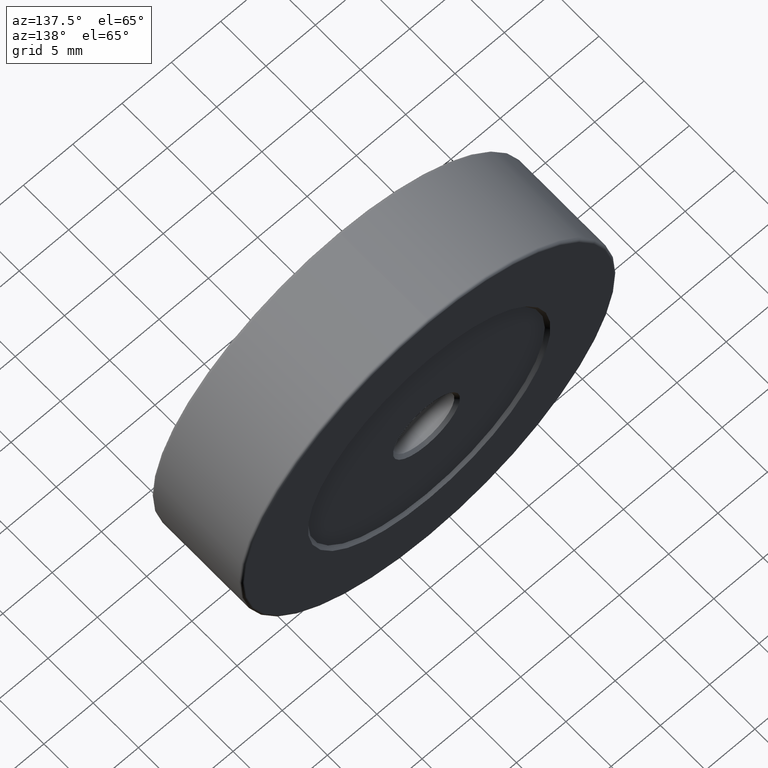
[diagram: clean part render]
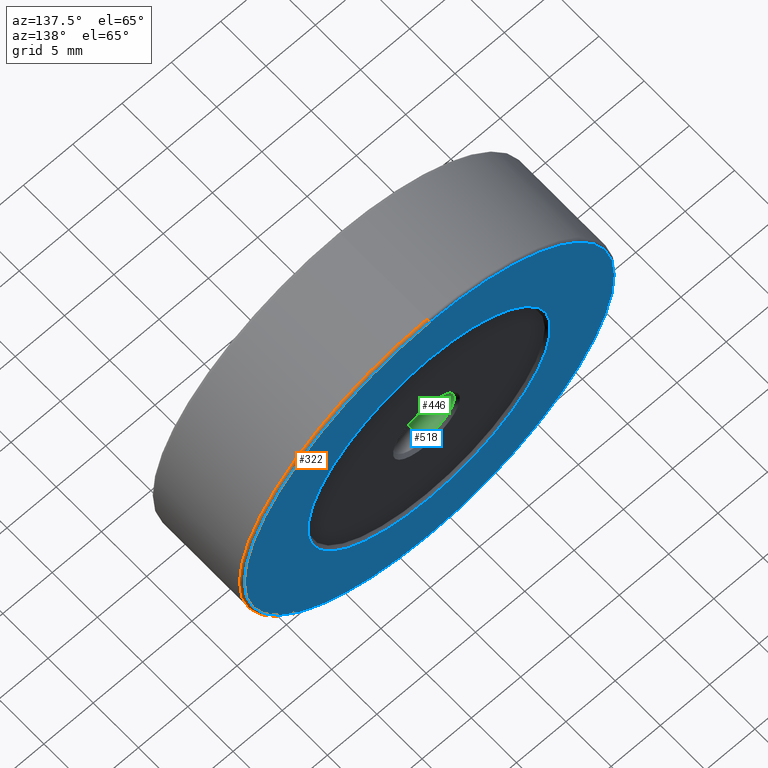
[diagram: same view with three faces highlighted in distinct colors, each labeled with its STEP entity id]
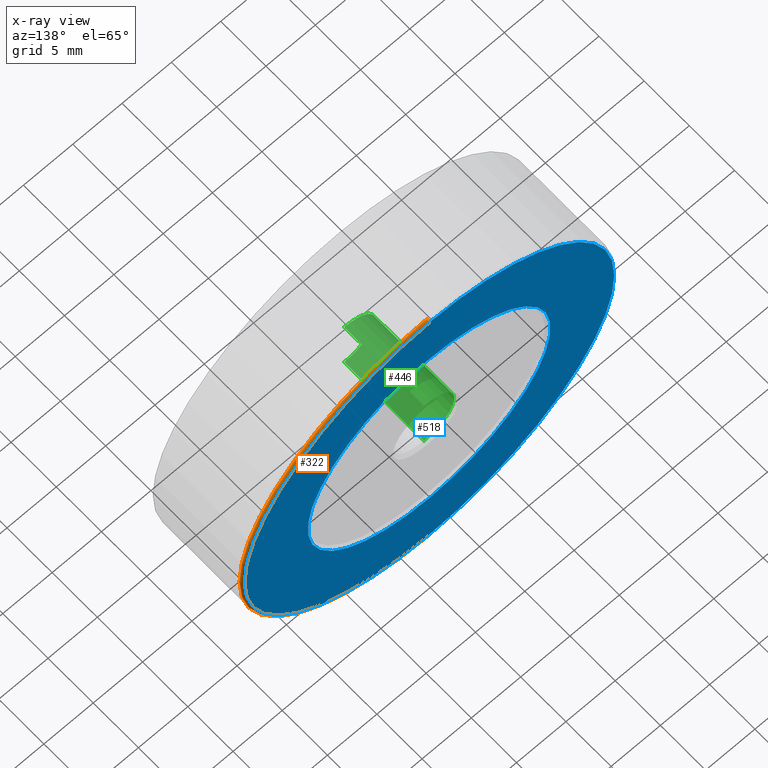
[diagram: x-ray of the same camera — body ghosted, the three highlighted faces saturated]
A machine part, auxiliary view with three faces highlighted in distinct colors.
The next image is the same camera in x-ray (body ghosted, the three faces saturated) — at least one of them is partly hidden behind the body in this view.
Their STEP definitions:

[orange] entity #322 — the highlighted toroidal blend (fillet) surface has major radius 18.75 mm and minor (blend) radius 0.25 mm.
#9 = CARTESIAN_POINT ( 'NONE',  ( -7.546808913101048510, 1.856404872697271946, 56.99999999999999289 ) ) ;
#19 = EDGE_CURVE ( 'NONE', #523, #270, #98, .T. ) ;
#20 = DIRECTION ( 'NONE',  ( 0.000000000000000000, 0.000000000000000000, 1.000000000000000000 ) ) ;
#22 = EDGE_LOOP ( 'NONE', ( #563, #282, #573, #490 ) ) ;
#29 = EDGE_CURVE ( 'NONE', #188, #97, #535, .T. ) ;
#32 = CARTESIAN_POINT ( 'NONE',  ( -7.546808913101048510, 2.106404872697272168, 38.00000000000000000 ) ) ;
#81 = CARTESIAN_POINT ( 'NONE',  ( -7.546808913101045846, 2.106404872697272168, 19.25000000000000000 ) ) ;
#88 = AXIS2_PLACEMENT_3D ( 'NONE', #542, #404, #20 ) ;
#97 = VERTEX_POINT ( 'NONE', #167 ) ;
#98 = CIRCLE ( 'NONE', #495, 0.2500000000000002220 ) ;
#120 = DIRECTION ( 'NONE',  ( 0.000000000000000000, 0.000000000000000000, 1.000000000000000000 ) ) ;
#135 = CIRCLE ( 'NONE', #313, 18.99999999999999645 ) ;
#150 = CIRCLE ( 'NONE', #234, 18.74999999999999645 ) ;
#167 = CARTESIAN_POINT ( 'NONE',  ( -7.546808913101048510, 2.106404872697272168, 56.74999999999999289 ) ) ;
#177 = DIRECTION ( 'NONE',  ( 1.000000000000000000, -0.000000000000000000, 1.224646799147353207E-16 ) ) ;
#188 = VERTEX_POINT ( 'NONE', #9 ) ;
#234 = AXIS2_PLACEMENT_3D ( 'NONE', #32, #375, #281 ) ;
#242 = TOROIDAL_SURFACE ( 'NONE', #88, 18.75000000000000000, 0.2500000000000000000 ) ;
#270 = VERTEX_POINT ( 'NONE', #81 ) ;
#281 = DIRECTION ( 'NONE',  ( 0.000000000000000000, 0.000000000000000000, 1.000000000000000000 ) ) ;
#282 = ORIENTED_EDGE ( 'NONE', *, *, #19, .T. ) ;
#313 = AXIS2_PLACEMENT_3D ( 'NONE', #410, #586, #120 ) ;
#322 = ADVANCED_FACE ( 'NONE', ( #416 ), #242, .T. ) ;
#333 = CARTESIAN_POINT ( 'NONE',  ( -7.546808913101048510, 1.856404872697271946, 56.74999999999999289 ) ) ;
#371 = DIRECTION ( 'NONE',  ( -1.000000000000000000, 0.000000000000000000, 0.000000000000000000 ) ) ;
#375 = DIRECTION ( 'NONE',  ( 0.000000000000000000, 1.000000000000000000, 0.000000000000000000 ) ) ;
#379 = AXIS2_PLACEMENT_3D ( 'NONE', #333, #371, #503 ) ;
#404 = DIRECTION ( 'NONE',  ( 0.000000000000000000, 1.000000000000000000, 0.000000000000000000 ) ) ;
#410 = CARTESIAN_POINT ( 'NONE',  ( -7.546808913101048510, 1.856404872697271946, 38.00000000000000000 ) ) ;
#416 = FACE_OUTER_BOUND ( 'NONE', #22, .T. ) ;
#427 = EDGE_CURVE ( 'NONE', #523, #188, #135, .T. ) ;
#490 = ORIENTED_EDGE ( 'NONE', *, *, #29, .F. ) ;
#495 = AXIS2_PLACEMENT_3D ( 'NONE', #595, #177, #604 ) ;
#501 = CARTESIAN_POINT ( 'NONE',  ( -7.546808913101044958, 1.856404872697271946, 19.00000000000000000 ) ) ;
#503 = DIRECTION ( 'NONE',  ( 0.000000000000000000, 0.000000000000000000, 1.000000000000000000 ) ) ;
#523 = VERTEX_POINT ( 'NONE', #501 ) ;
#535 = CIRCLE ( 'NONE', #379, 0.2500000000000002220 ) ;
#542 = CARTESIAN_POINT ( 'NONE',  ( -7.546808913101048510, 1.856404872697271946, 38.00000000000000000 ) ) ;
#562 = EDGE_CURVE ( 'NONE', #97, #270, #150, .T. ) ;
#563 = ORIENTED_EDGE ( 'NONE', *, *, #427, .F. ) ;
#573 = ORIENTED_EDGE ( 'NONE', *, *, #562, .F. ) ;
#586 = DIRECTION ( 'NONE',  ( -0.000000000000000000, -1.000000000000000000, -0.000000000000000000 ) ) ;
#595 = CARTESIAN_POINT ( 'NONE',  ( -7.546808913101045846, 1.856404872697271946, 19.25000000000000000 ) ) ;
#604 = DIRECTION ( 'NONE',  ( 0.000000000000000000, 0.000000000000000000, -1.000000000000000000 ) ) ;

[blue] entity #518 — the highlighted planar face has unit normal (0, 1, 0).
#7 = AXIS2_PLACEMENT_3D ( 'NONE', #418, #608, #546 ) ;
#32 = CARTESIAN_POINT ( 'NONE',  ( -7.546808913101048510, 2.106404872697272168, 38.00000000000000000 ) ) ;
#36 = CARTESIAN_POINT ( 'NONE',  ( -7.546808913101048510, 2.106404872697272168, 38.00000000000000000 ) ) ;
#39 = VERTEX_POINT ( 'NONE', #272 ) ;
#56 = EDGE_CURVE ( 'NONE', #270, #97, #583, .T. ) ;
#81 = CARTESIAN_POINT ( 'NONE',  ( -7.546808913101045846, 2.106404872697272168, 19.25000000000000000 ) ) ;
#94 = EDGE_CURVE ( 'NONE', #39, #569, #146, .T. ) ;
#97 = VERTEX_POINT ( 'NONE', #167 ) ;
#102 = ORIENTED_EDGE ( 'NONE', *, *, #94, .T. ) ;
#130 = FACE_OUTER_BOUND ( 'NONE', #137, .T. ) ;
#133 = CARTESIAN_POINT ( 'NONE',  ( -7.546808913101048510, 2.106404872697272168, 50.29999999999999716 ) ) ;
#136 = AXIS2_PLACEMENT_3D ( 'NONE', #399, #447, #212 ) ;
#137 = EDGE_LOOP ( 'NONE', ( #538, #482 ) ) ;
#146 = CIRCLE ( 'NONE', #136, 12.29999999999999893 ) ;
#150 = CIRCLE ( 'NONE', #234, 18.74999999999999645 ) ;
#167 = CARTESIAN_POINT ( 'NONE',  ( -7.546808913101048510, 2.106404872697272168, 56.74999999999999289 ) ) ;
#178 = PLANE ( 'NONE',  #7 ) ;
#212 = DIRECTION ( 'NONE',  ( 0.000000000000000000, 0.000000000000000000, 1.000000000000000000 ) ) ;
#234 = AXIS2_PLACEMENT_3D ( 'NONE', #32, #375, #281 ) ;
#241 = CIRCLE ( 'NONE', #328, 12.29999999999999893 ) ;
#270 = VERTEX_POINT ( 'NONE', #81 ) ;
#272 = CARTESIAN_POINT ( 'NONE',  ( -7.546808913101046734, 2.106404872697272168, 25.69999999999999574 ) ) ;
#281 = DIRECTION ( 'NONE',  ( 0.000000000000000000, 0.000000000000000000, 1.000000000000000000 ) ) ;
#285 = AXIS2_PLACEMENT_3D ( 'NONE', #377, #481, #566 ) ;
#301 = EDGE_CURVE ( 'NONE', #569, #39, #241, .T. ) ;
#328 = AXIS2_PLACEMENT_3D ( 'NONE', #36, #554, #594 ) ;
#345 = EDGE_LOOP ( 'NONE', ( #560, #102 ) ) ;
#375 = DIRECTION ( 'NONE',  ( 0.000000000000000000, 1.000000000000000000, 0.000000000000000000 ) ) ;
#377 = CARTESIAN_POINT ( 'NONE',  ( -7.546808913101048510, 2.106404872697272168, 38.00000000000000000 ) ) ;
#399 = CARTESIAN_POINT ( 'NONE',  ( -7.546808913101048510, 2.106404872697272168, 38.00000000000000000 ) ) ;
#418 = CARTESIAN_POINT ( 'NONE',  ( -7.546808913101048510, 2.106404872697272168, 38.00000000000000000 ) ) ;
#447 = DIRECTION ( 'NONE',  ( -0.000000000000000000, -1.000000000000000000, -0.000000000000000000 ) ) ;
#466 = FACE_BOUND ( 'NONE', #345, .T. ) ;
#481 = DIRECTION ( 'NONE',  ( 0.000000000000000000, 1.000000000000000000, 0.000000000000000000 ) ) ;
#482 = ORIENTED_EDGE ( 'NONE', *, *, #56, .T. ) ;
#518 = ADVANCED_FACE ( 'NONE', ( #130, #466 ), #178, .T. ) ;
#538 = ORIENTED_EDGE ( 'NONE', *, *, #562, .T. ) ;
#546 = DIRECTION ( 'NONE',  ( 0.000000000000000000, -0.000000000000000000, 1.000000000000000000 ) ) ;
#554 = DIRECTION ( 'NONE',  ( -0.000000000000000000, -1.000000000000000000, -0.000000000000000000 ) ) ;
#560 = ORIENTED_EDGE ( 'NONE', *, *, #301, .T. ) ;
#562 = EDGE_CURVE ( 'NONE', #97, #270, #150, .T. ) ;
#566 = DIRECTION ( 'NONE',  ( 0.000000000000000000, 0.000000000000000000, 1.000000000000000000 ) ) ;
#569 = VERTEX_POINT ( 'NONE', #133 ) ;
#583 = CIRCLE ( 'NONE', #285, 18.74999999999999645 ) ;
#594 = DIRECTION ( 'NONE',  ( 0.000000000000000000, 0.000000000000000000, 1.000000000000000000 ) ) ;
#608 = DIRECTION ( 'NONE',  ( 0.000000000000000000, 1.000000000000000000, 0.000000000000000000 ) ) ;

[green] entity #446 — the highlighted cylindrical surface (partial cylindrical patch) has radius 3.1 mm, axis along (-0, 1, -0).
#11 = CARTESIAN_POINT ( 'NONE',  ( -7.546808913101048510, -7.293595127302721082, 41.09999999999999432 ) ) ;
#16 = CARTESIAN_POINT ( 'NONE',  ( -7.546808913101048510, -7.893595127302726944, 41.09999999999999432 ) ) ;
#33 = DIRECTION ( 'NONE',  ( 0.000000000000000000, 0.000000000000000000, 1.000000000000000000 ) ) ;
#76 = CARTESIAN_POINT ( 'NONE',  ( -7.546808913101048510, -7.893595127302726944, 38.00000000000000000 ) ) ;
#92 = ORIENTED_EDGE ( 'NONE', *, *, #412, .T. ) ;
#103 = CIRCLE ( 'NONE', #199, 3.099999999999998757 ) ;
#105 = VECTOR ( 'NONE', #249, 1000.000000000000000 ) ;
#113 = FACE_OUTER_BOUND ( 'NONE', #406, .T. ) ;
#124 = DIRECTION ( 'NONE',  ( -0.000000000000000000, 1.000000000000000000, -0.000000000000000000 ) ) ;
#127 = CARTESIAN_POINT ( 'NONE',  ( -7.546808913101048510, -7.293595127302721082, 34.89999999999999858 ) ) ;
#153 = EDGE_CURVE ( 'NONE', #402, #585, #480, .T. ) ;
#172 = ORIENTED_EDGE ( 'NONE', *, *, #227, .T. ) ;
#173 = CARTESIAN_POINT ( 'NONE',  ( -7.546808913101048510, 1.506404872697263642, 34.89999999999999858 ) ) ;
#199 = AXIS2_PLACEMENT_3D ( 'NONE', #532, #360, #263 ) ;
#214 = DIRECTION ( 'NONE',  ( 0.000000000000000000, 0.000000000000000000, 1.000000000000000000 ) ) ;
#227 = EDGE_CURVE ( 'NONE', #454, #585, #508, .T. ) ;
#229 = EDGE_CURVE ( 'NONE', #507, #454, #463, .T. ) ;
#246 = ORIENTED_EDGE ( 'NONE', *, *, #229, .T. ) ;
#249 = DIRECTION ( 'NONE',  ( -0.000000000000000000, 1.000000000000000000, -0.000000000000000000 ) ) ;
#252 = AXIS2_PLACEMENT_3D ( 'NONE', #461, #599, #33 ) ;
#256 = ORIENTED_EDGE ( 'NONE', *, *, #153, .F. ) ;
#263 = DIRECTION ( 'NONE',  ( 0.000000000000000000, 0.000000000000000000, -1.000000000000000000 ) ) ;
#292 = AXIS2_PLACEMENT_3D ( 'NONE', #76, #309, #214 ) ;
#309 = DIRECTION ( 'NONE',  ( -0.000000000000000000, 1.000000000000000000, -0.000000000000000000 ) ) ;
#317 = CARTESIAN_POINT ( 'NONE',  ( -7.546808913101048510, -7.893595127302726944, 34.89999999999999858 ) ) ;
#360 = DIRECTION ( 'NONE',  ( -0.000000000000000000, -1.000000000000000000, -0.000000000000000000 ) ) ;
#402 = VERTEX_POINT ( 'NONE', #11 ) ;
#406 = EDGE_LOOP ( 'NONE', ( #92, #246, #172, #256 ) ) ;
#412 = EDGE_CURVE ( 'NONE', #402, #507, #103, .T. ) ;
#446 = ADVANCED_FACE ( 'NONE', ( #113 ), #450, .F. ) ;
#450 = CYLINDRICAL_SURFACE ( 'NONE', #292, 3.099999999999998757 ) ;
#454 = VERTEX_POINT ( 'NONE', #173 ) ;
#461 = CARTESIAN_POINT ( 'NONE',  ( -7.546808913101048510, 1.506404872697263642, 38.00000000000000000 ) ) ;
#463 = LINE ( 'NONE', #317, #527 ) ;
#480 = LINE ( 'NONE', #16, #105 ) ;
#504 = CARTESIAN_POINT ( 'NONE',  ( -7.546808913101048510, 1.506404872697263642, 41.09999999999999432 ) ) ;
#507 = VERTEX_POINT ( 'NONE', #127 ) ;
#508 = CIRCLE ( 'NONE', #252, 3.099999999999998757 ) ;
#527 = VECTOR ( 'NONE', #124, 1000.000000000000000 ) ;
#532 = CARTESIAN_POINT ( 'NONE',  ( -7.546808913101048510, -7.293595127302721082, 38.00000000000000000 ) ) ;
#585 = VERTEX_POINT ( 'NONE', #504 ) ;
#599 = DIRECTION ( 'NONE',  ( 0.000000000000000000, 1.000000000000000000, 0.000000000000000000 ) ) ;